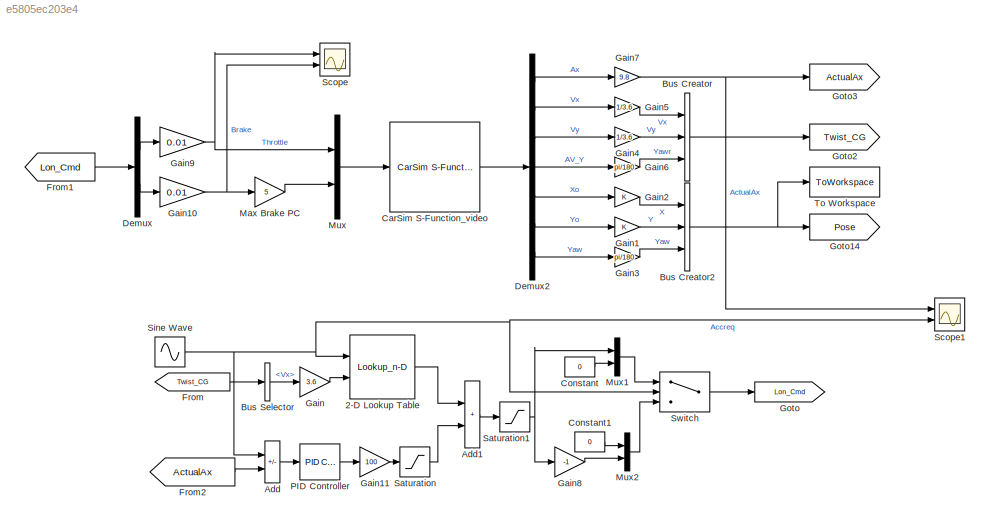
MODEL slx_e5805ec203e4
KIND model
CONFIG AbsTol = auto
CONFIG EnableMultiTasking = off
CONFIG FixedStep = auto
CONFIG MaxStep = auto
CONFIG MinStep = auto
CONFIG RelTol = 1e-3
CONFIG SampleTimeConstraint = Unconstrained
CONFIG SolverName = VariableStepAuto
CONFIG StartTime = 0.0
CONFIG StopTime = 60
BLOCK [Lookup_n-D] 2-D Lookup Table
  BreakpointsForDimension1 = Accreq_valueY
  BreakpointsForDimension2 = Vehspd_valueX
  InputPortMap = u0,u1
  InternalRulePriority = Speed
  Ports = [2, 1]
  RndMeth = Simplest
  Table = Openness_valueZ
BLOCK [Sum] Add
  IconShape = rectangular
  Inputs = +-
  Ports = [2, 1]
BLOCK [Sum] Add1
  IconShape = rectangular
  Ports = [2, 1]
BLOCK [BusCreator] Bus Creator
  DisplayOption = bar
  InheritFromInputs = on
  Inputs = 3
  Ports = [3, 1]
BLOCK [BusCreator] Bus Creator2
  DisplayOption = bar
  InheritFromInputs = on
  Inputs = 3
  Ports = [3, 1]
BLOCK [BusSelector] Bus Selector
  OutputSignals = Vx
  Ports = [1, 1]
BLOCK [Reference] CarSim S-Function_video  REF=Solver_SF/CarSim S-Function_video
  Ports = [1, 1]
  Priority = 1
  SourceBlock = Solver_SF/CarSim S-Function_video
  SourceProductName = CarSim S-Function
  SourceType = Vehicle math model library
BLOCK [Constant] Constant
  Value = 0
BLOCK [Constant] Constant1
  Value = 0
BLOCK [Demux] Demux
  Outputs = 2
  Ports = [1, 2]
BLOCK [Demux] Demux2
  Outputs = 7
  Ports = [1, 7]
BLOCK [From] From
  GotoTag = Twist_CG
BLOCK [From] From1
  GotoTag = Lon_Cmd
BLOCK [From] From2
  GotoTag = ActualAx
BLOCK [Gain] Gain
  Gain = 3.6
BLOCK [Gain] Gain1
BLOCK [Gain] Gain10
  Gain = 0.01
BLOCK [Gain] Gain11
  Gain = 100
BLOCK [Gain] Gain2
BLOCK [Gain] Gain3
  Gain = pi/180
BLOCK [Gain] Gain4
  Gain = 1/3.6
BLOCK [Gain] Gain5
  Gain = 1/3.6
BLOCK [Gain] Gain6
  Gain = pi/180
BLOCK [Gain] Gain7
  Gain = 9.8
BLOCK [Gain] Gain8
  Gain = -1
BLOCK [Gain] Gain9
  Gain = 0.01
BLOCK [Goto] Goto
  GotoTag = Lon_Cmd
BLOCK [Goto] Goto14
  GotoTag = Pose
BLOCK [Goto] Goto2
  GotoTag = Twist_CG
BLOCK [Goto] Goto3
  GotoTag = ActualAx
BLOCK [Gain] Max Brake PC
  Gain = 5
BLOCK [Mux] Mux
  DisplayOption = bar
  Inputs = 2
  Ports = [2, 1]
BLOCK [Mux] Mux1
  DisplayOption = bar
  Inputs = 2
  Ports = [2, 1]
BLOCK [Mux] Mux2
  DisplayOption = bar
  Inputs = 2
  Ports = [2, 1]
BLOCK [Reference] PID Controller  REF=pid_lib/PID Controller
  Ports = [1, 1]
  SourceBlock = pid_lib/PID Controller
  SourceProductBaseCode = SL
  SourceType = PID 1dof
BLOCK [Saturate] Saturation
  LowerLimit = -50
  UpperLimit = 50
BLOCK [Saturate] Saturation1
  LowerLimit = -100
  UpperLimit = 100
BLOCK [Scope] Scope
  Floating = off
  NumInputPorts = 2
  Ports = [2]
  ScopeSpecificationString = Simulink.scopes.TimeScopeBlockCfg('CurrentConfiguration', extmgr.ConfigurationSet(extmgr.Configuration('Core','General UI',true),extmgr.Configuration('Core','Source UI',true),extmgr.Configuration('Sources','WiredSimulink',true),extmgr.Configuration('Visuals','Time Domain',true,'SerializedDisplays',{struct('MinYLimReal','-0.61387','MaxYLimReal','1.17932','YLabelReal','','MinYLimMag','0.00000','MaxY...<+1360ch>
BLOCK [Scope] Scope1
  Floating = off
  NumInputPorts = 2
  Ports = [2]
  ScopeSpecificationString = Simulink.scopes.TimeScopeBlockCfg('CurrentConfiguration', extmgr.ConfigurationSet(extmgr.Configuration('Core','General UI',true),extmgr.Configuration('Core','Source UI',true),extmgr.Configuration('Sources','WiredSimulink',true,'DataLoggingVariableName','ScopeData1'),extmgr.Configuration('Visuals','Time Domain',true,'SerializedDisplays',{struct('MinYLimReal','-3.82753','MaxYLimReal','5.27049','YLab...<+1458ch>
BLOCK [Sin] Sine Wave
  Amplitude = 4.0
  Frequency = 2*pi/15
  Ports = [0, 1]
  SampleTime = 0
BLOCK [Switch] Switch
  Criteria = u2 > Threshold
  InputSameDT = off
  SaturateOnIntegerOverflow = off
BLOCK [ToWorkspace] To Workspace
  FixptAsFi = on
  MaxDataPoints = inf
  Ports = [1]
  SampleTime = -1
  SaveFormat = Timeseries
  VariableName = pose
LINE 2-D Lookup Table:1 -> Add1:1
LINE Add1:1 -> Saturation1:1
LINE Add:1 -> PID Controller:1
NET Bus Creator2:1 -> Goto14:1, To Workspace:1
LINE Bus Creator:1 -> Goto2:1
LINE Bus Selector:1 -> Gain:1
LINE CarSim S-Function_video:1 -> Demux2:1
LINE Constant1:1 -> Mux2:1
LINE Constant:1 -> Mux1:2
LINE Demux2:1 -> Gain7:1
LINE Demux2:2 -> Gain5:1
LINE Demux2:3 -> Gain4:1
LINE Demux2:4 -> Gain6:1
LINE Demux2:5 -> Gain2:1
LINE Demux2:6 -> Gain1:1
LINE Demux2:7 -> Gain3:1
LINE Demux:1 -> Gain9:1
LINE Demux:2 -> Gain10:1
LINE From1:1 -> Demux:1
LINE From2:1 -> Add:2
LINE From:1 -> Bus Selector:1
NET Gain10:1 -> Max Brake PC:1, Scope:2
LINE Gain11:1 -> Saturation:1
LINE Gain1:1 -> Bus Creator2:2
LINE Gain2:1 -> Bus Creator2:1
LINE Gain3:1 -> Bus Creator2:3
LINE Gain4:1 -> Bus Creator:2
LINE Gain5:1 -> Bus Creator:1
LINE Gain6:1 -> Bus Creator:3
NET Gain7:1 -> Goto3:1, Scope1:1
LINE Gain8:1 -> Mux2:2
NET Gain9:1 -> Mux:1, Scope:1
LINE Gain:1 -> 2-D Lookup Table:2
LINE Max Brake PC:1 -> Mux:2
LINE Mux1:1 -> Switch:1
LINE Mux2:1 -> Switch:3
LINE Mux:1 -> CarSim S-Function_video:1
LINE PID Controller:1 -> Gain11:1
NET Saturation1:1 -> Gain8:1, Mux1:1
LINE Saturation:1 -> Add1:2
NET Sine Wave:1 -> 2-D Lookup Table:1, Add:1, Scope1:2, Switch:2
LINE Switch:1 -> Goto:1
note: NET lines group one-source signal fan-out (src -> all destinations, sorted); 1:1 wires keep LINE
